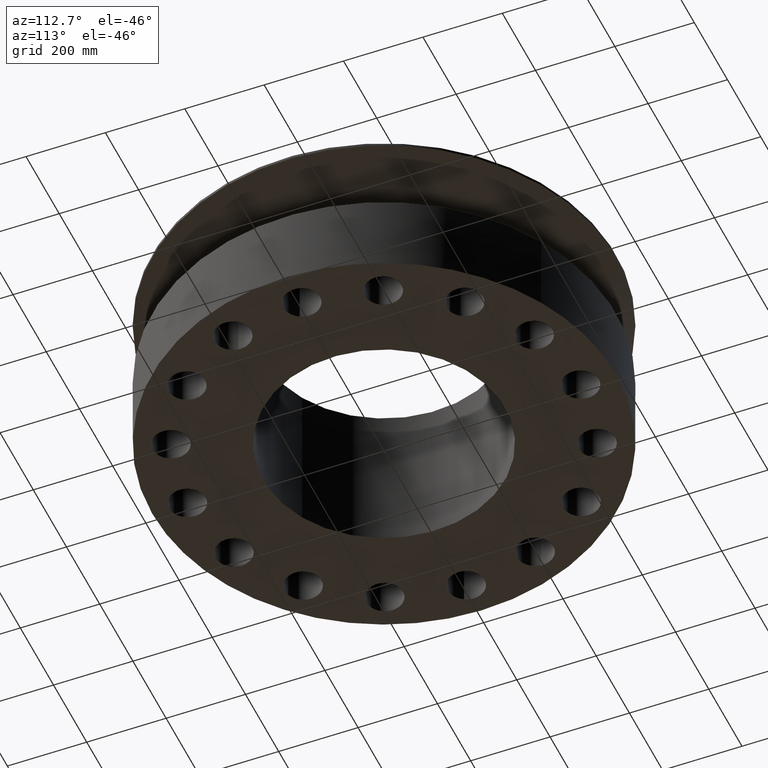
[diagram: clean part render]
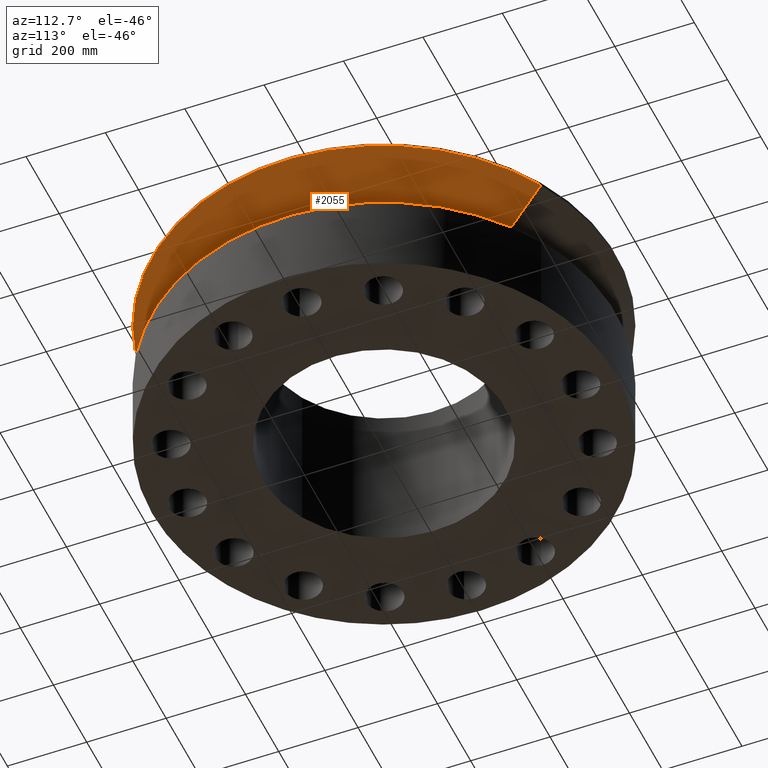
[diagram: same view with one face highlighted and labeled with its STEP entity id]
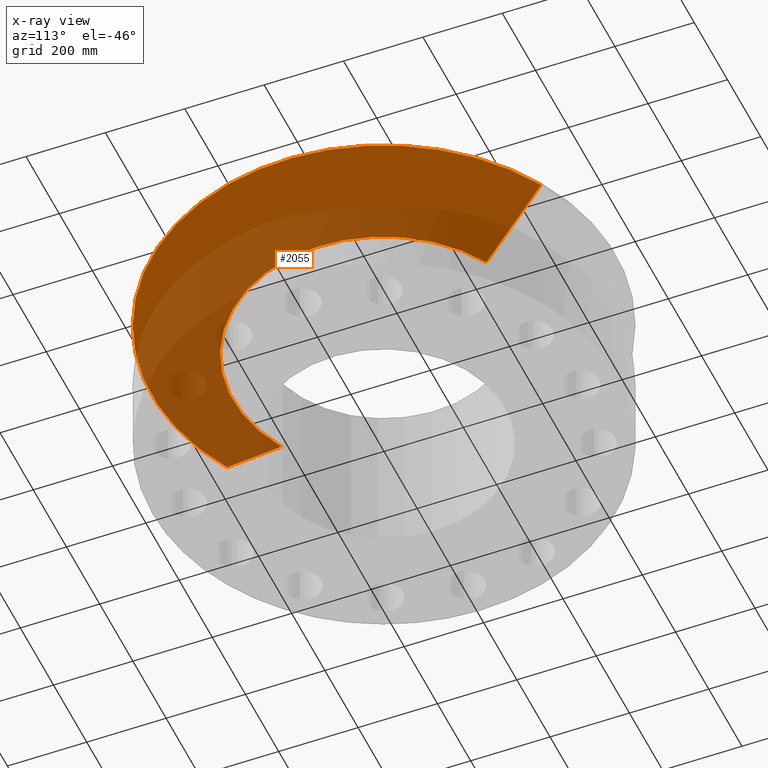
[diagram: x-ray of the same camera — body ghosted, the highlighted face saturated]
A machine part, auxiliary view. The second image highlights one B-rep face of the part: STEP entity #2055.
The next image is the same camera in x-ray: the body ghosted, the highlighted face saturated — about 53% of this face is hidden behind the body in this view.
In plain terms, the highlighted conical surface has half-angle 65 deg.
Its self-contained STEP definition (entity closure, byte-faithful):
#1483=AXIS2_PLACEMENT_3D('Circle Axis2P3D',#1481,#1482,$) ;
#2028=AXIS2_PLACEMENT_3D('Cone Axis2P3D',#2025,#2026,#2027) ;
#2039=AXIS2_PLACEMENT_3D('Circle Axis2P3D',#2037,#2038,$) ;
#1478=CARTESIAN_POINT('Vertex',(7.19138307909,13.1637384284,11.75)) ;
#1481=CARTESIAN_POINT('Axis2P3D Location',(0.,0.,11.75)) ;
#1485=CARTESIAN_POINT('Vertex',(-7.19138307909,-13.1637384284,11.75)) ;
#2025=CARTESIAN_POINT('Axis2P3D Location',(0.,0.,11.75)) ;
#2030=CARTESIAN_POINT('Line Origine',(9.10908523352,16.674068676,13.6152306327)) ;
#2034=CARTESIAN_POINT('Vertex',(11.0267873879,20.1843989236,15.4804612653)) ;
#2037=CARTESIAN_POINT('Axis2P3D Location',(0.,0.,15.4804612653)) ;
#2041=CARTESIAN_POINT('Vertex',(-11.0267873879,-20.1843989236,15.4804612653)) ;
#2044=CARTESIAN_POINT('Line Origine',(-9.10908523352,-16.674068676,13.6152306327)) ;
#1482=DIRECTION('Axis2P3D Direction',(0.,0.,-0.0393700787402)) ;
#2026=DIRECTION('Axis2P3D Direction',(-0.,-0.,0.0393700787402)) ;
#2027=DIRECTION('Axis2P3D XDirection',(0.0188750212049,0.0345504945626,0.)) ;
#2031=DIRECTION('Vector Direction',(0.0171065786985,0.0313133822681,0.0166385142418)) ;
#2038=DIRECTION('Axis2P3D Direction',(-0.,0.,0.0393700787402)) ;
#2045=DIRECTION('Vector Direction',(-0.0171065786985,-0.0313133822681,0.0166385142418)) ;
#2032=VECTOR('Line Direction',#2031,0.0393700787402) ;
#2046=VECTOR('Line Direction',#2045,0.0393700787402) ;
#2050=ORIENTED_EDGE('',*,*,#1487,.F.) ;
#2051=ORIENTED_EDGE('',*,*,#2036,.T.) ;
#2052=ORIENTED_EDGE('',*,*,#2043,.T.) ;
#2053=ORIENTED_EDGE('',*,*,#2048,.F.) ;
#2055=ADVANCED_FACE('PartBody',(#2054),#2029,.T.) ;
#1484=CIRCLE('generated circle',#1483,15.0000000001) ;
#2040=CIRCLE('generated circle',#2039,23.0000000001) ;
#2029=CONICAL_SURFACE('Cone',#2028,15.0000000001,1.1344640138) ;
#1487=EDGE_CURVE('',#1479,#1486,#1484,.T.) ;
#2036=EDGE_CURVE('',#1479,#2035,#2033,.T.) ;
#2043=EDGE_CURVE('',#2035,#2042,#2040,.F.) ;
#2048=EDGE_CURVE('',#1486,#2042,#2047,.T.) ;
#2049=EDGE_LOOP('',(#2050,#2051,#2052,#2053)) ;
#2054=FACE_OUTER_BOUND('',#2049,.T.) ;
#2033=LINE('Line',#2030,#2032) ;
#2047=LINE('Line',#2044,#2046) ;
#1479=VERTEX_POINT('',#1478) ;
#1486=VERTEX_POINT('',#1485) ;
#2035=VERTEX_POINT('',#2034) ;
#2042=VERTEX_POINT('',#2041) ;